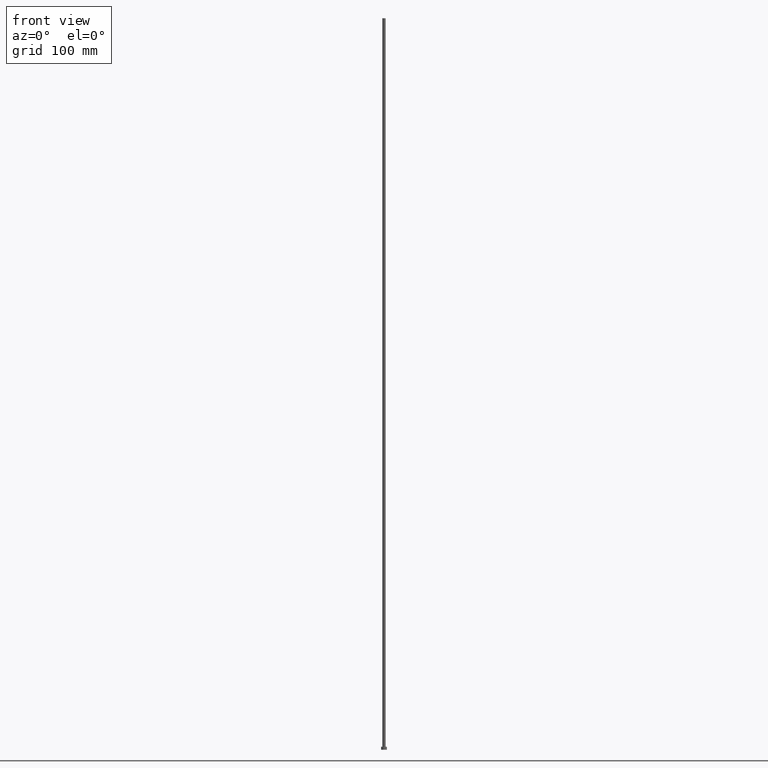
[diagram: clean part render]
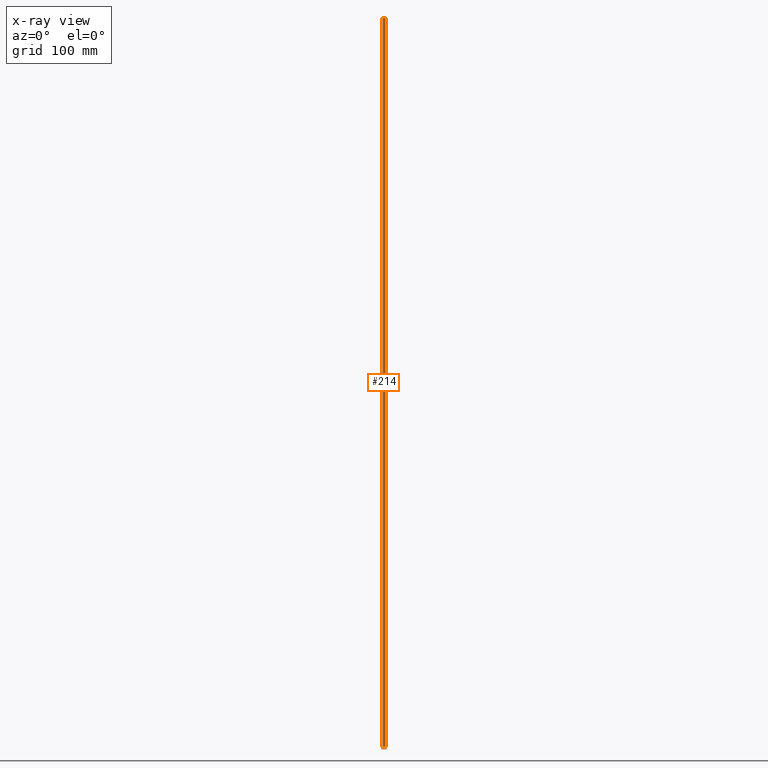
[diagram: x-ray — body ghosted, one internal face saturated and labeled with its STEP entity id]
A machine part, front view, then the same camera in x-ray: the body is ghosted and one INTERNAL B-rep face — a face not visible from any outside direction — is saturated and labeled: STEP entity #214.
In plain terms, the highlighted cylindrical surface (edge-blend (fillet) strip) has radius 2.25 mm, axis along (-0, -0, -1).
Its self-contained STEP definition (entity closure, byte-faithful):
#2 = EDGE_CURVE ( 'NONE', #199, #222, #225, .T. ) ;
#7 = CARTESIAN_POINT ( 'NONE',  ( 2.250000000000000000, 2.755455298081544285E-16, 1000.000000000000000 ) ) ;
#11 = AXIS2_PLACEMENT_3D ( 'NONE', #154, #245, #156 ) ;
#14 = EDGE_CURVE ( 'NONE', #222, #168, #139, .T. ) ;
#17 = EDGE_CURVE ( 'NONE', #199, #196, #236, .T. ) ;
#33 = AXIS2_PLACEMENT_3D ( 'NONE', #37, #124, #198 ) ;
#37 = CARTESIAN_POINT ( 'NONE',  ( 0.000000000000000000, 0.000000000000000000, 1000.000000000000000 ) ) ;
#39 = CYLINDRICAL_SURFACE ( 'NONE', #33, 2.250000000000000000 ) ;
#48 = DIRECTION ( 'NONE',  ( 0.000000000000000000, 0.000000000000000000, 1.000000000000000000 ) ) ;
#57 = AXIS2_PLACEMENT_3D ( 'NONE', #95, #48, #173 ) ;
#65 = ORIENTED_EDGE ( 'NONE', *, *, #141, .F. ) ;
#95 = CARTESIAN_POINT ( 'NONE',  ( 0.000000000000000000, 0.000000000000000000, 4.000000000000000000 ) ) ;
#124 = DIRECTION ( 'NONE',  ( -0.000000000000000000, -0.000000000000000000, -1.000000000000000000 ) ) ;
#132 = VECTOR ( 'NONE', #175, 1000.000000000000000 ) ;
#139 = CIRCLE ( 'NONE', #57, 2.250000000000000000 ) ;
#141 = EDGE_CURVE ( 'NONE', #196, #168, #195, .T. ) ;
#143 = VECTOR ( 'NONE', #239, 1000.000000000000000 ) ;
#144 = CARTESIAN_POINT ( 'NONE',  ( -2.250000000000000000, 0.000000000000000000, 1000.000000000000000 ) ) ;
#150 = ORIENTED_EDGE ( 'NONE', *, *, #17, .F. ) ;
#152 = ORIENTED_EDGE ( 'NONE', *, *, #14, .T. ) ;
#154 = CARTESIAN_POINT ( 'NONE',  ( 0.000000000000000000, 0.000000000000000000, 1000.000000000000000 ) ) ;
#156 = DIRECTION ( 'NONE',  ( 1.000000000000000000, 0.000000000000000000, 0.000000000000000000 ) ) ;
#164 = CARTESIAN_POINT ( 'NONE',  ( -2.250000000000000000, 0.000000000000000000, 4.000000000000000000 ) ) ;
#168 = VERTEX_POINT ( 'NONE', #164 ) ;
#173 = DIRECTION ( 'NONE',  ( 1.000000000000000000, 0.000000000000000000, 0.000000000000000000 ) ) ;
#175 = DIRECTION ( 'NONE',  ( -0.000000000000000000, -0.000000000000000000, -1.000000000000000000 ) ) ;
#195 = LINE ( 'NONE', #253, #143 ) ;
#196 = VERTEX_POINT ( 'NONE', #144 ) ;
#198 = DIRECTION ( 'NONE',  ( -1.000000000000000000, 0.000000000000000000, 0.000000000000000000 ) ) ;
#199 = VERTEX_POINT ( 'NONE', #213 ) ;
#213 = CARTESIAN_POINT ( 'NONE',  ( 2.250000000000000000, 2.755455298081544285E-16, 1000.000000000000000 ) ) ;
#214 = ADVANCED_FACE ( 'NONE', ( #216 ), #39, .T. ) ;
#216 = FACE_OUTER_BOUND ( 'NONE', #219, .T. ) ;
#219 = EDGE_LOOP ( 'NONE', ( #150, #241, #152, #65 ) ) ;
#222 = VERTEX_POINT ( 'NONE', #254 ) ;
#225 = LINE ( 'NONE', #7, #132 ) ;
#236 = CIRCLE ( 'NONE', #11, 2.250000000000000000 ) ;
#239 = DIRECTION ( 'NONE',  ( -0.000000000000000000, -0.000000000000000000, -1.000000000000000000 ) ) ;
#241 = ORIENTED_EDGE ( 'NONE', *, *, #2, .T. ) ;
#245 = DIRECTION ( 'NONE',  ( 0.000000000000000000, 0.000000000000000000, 1.000000000000000000 ) ) ;
#253 = CARTESIAN_POINT ( 'NONE',  ( -2.250000000000000000, 0.000000000000000000, 1000.000000000000000 ) ) ;
#254 = CARTESIAN_POINT ( 'NONE',  ( 2.250000000000000000, 2.755455298081544285E-16, 4.000000000000000000 ) ) ;